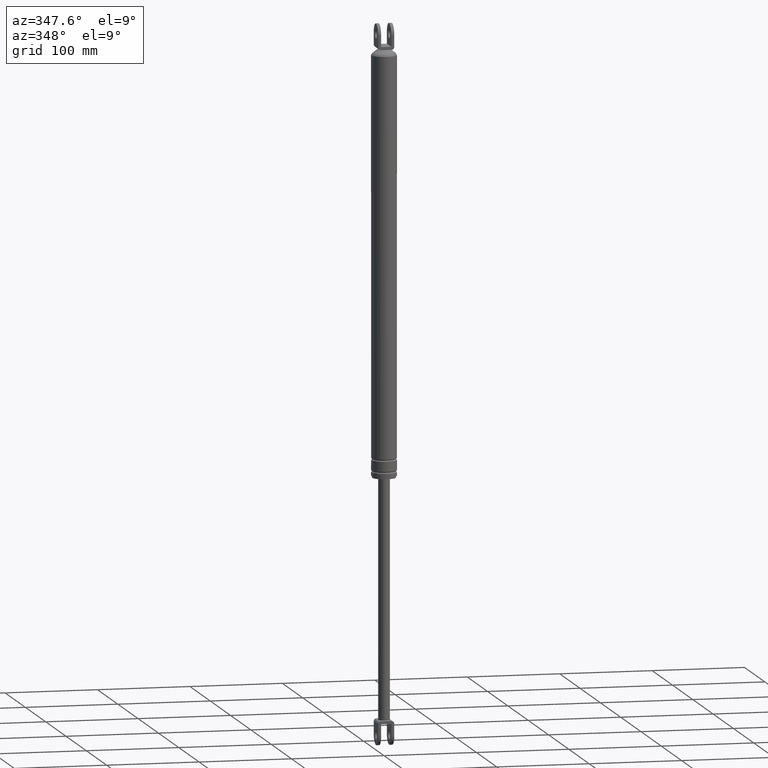
[diagram: clean part render]
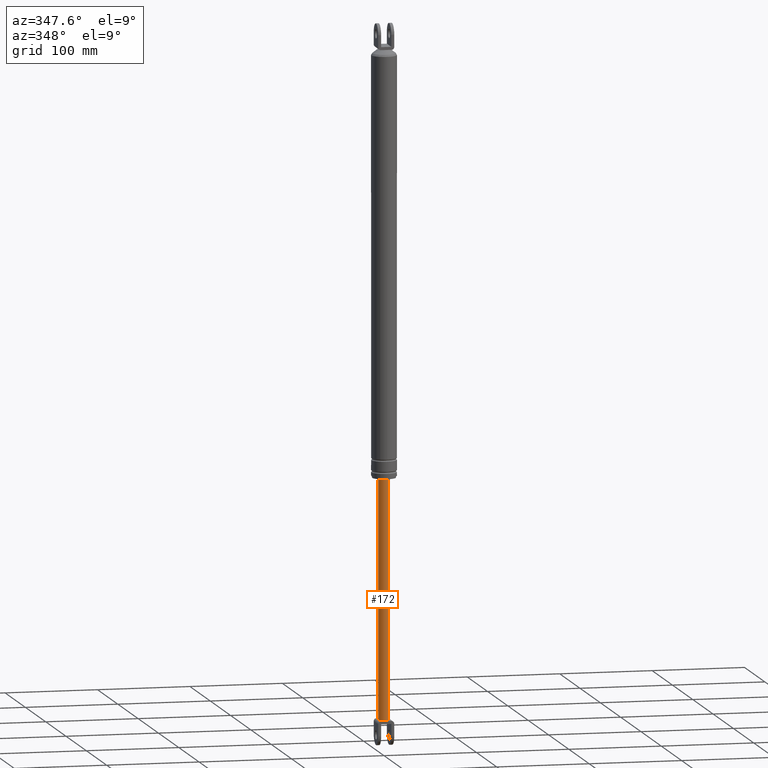
[diagram: same view with one face highlighted and labeled with its STEP entity id]
A machine part, auxiliary view. The second image highlights one B-rep face of the part: STEP entity #172.
In plain terms, the highlighted cylindrical surface (edge-blend (fillet) strip) has radius 6.25 mm, axis along (0, 0, 1).
Its self-contained STEP definition (entity closure, byte-faithful):
#172=ADVANCED_FACE('',(#785),#784,.T.);
#784=CYLINDRICAL_SURFACE('',#2156,6.25000000000E+000);
#785=FACE_OUTER_BOUND('',#2157,.T.);
#2153=CARTESIAN_POINT('',(5.17052520630E-013,7.41881103725E-013,5.64750004000E+001));
#2154=DIRECTION('',(3.80518948291E-015,5.44705299484E-015,1.00000000000E+000));
#2155=DIRECTION('',(5.74319039491E-001,-8.18631566016E-001,2.27373675443E-015));
#2156=AXIS2_PLACEMENT_3D('',#2153,#2154,#2155);
#2157=EDGE_LOOP('',(#2535,#2536,#2537,#2538,#2539,#2540,#2541));
#2535=ORIENTED_EDGE('',*,*,#2720,.F.);
#2536=ORIENTED_EDGE('',*,*,#2737,.F.);
#2537=ORIENTED_EDGE('',*,*,#2723,.F.);
#2538=ORIENTED_EDGE('',*,*,#2740,.T.);
#2539=ORIENTED_EDGE('',*,*,#2717,.F.);
#2540=ORIENTED_EDGE('',*,*,#2719,.F.);
#2541=ORIENTED_EDGE('',*,*,#2741,.F.);
#2717=EDGE_CURVE('',#3851,#3852,#3853,.T.);
#2719=EDGE_CURVE('',#3859,#3851,#3866,.T.);
#2720=EDGE_CURVE('',#3786,#3872,#3873,.T.);
#2723=EDGE_CURVE('',#3885,#3759,#3892,.T.);
#2737=EDGE_CURVE('',#3759,#3786,#3988,.T.);
#2740=EDGE_CURVE('',#3885,#3852,#4006,.T.);
#2741=EDGE_CURVE('',#3872,#3859,#4012,.T.);
#3759=VERTEX_POINT('',#4679);
#3786=VERTEX_POINT('',#4695);
#3851=VERTEX_POINT('',#4758);
#3852=VERTEX_POINT('',#4759);
#3853=CIRCLE('',#4763,6.25000000000E+000);
#3859=VERTEX_POINT('',#4764);
#3866=CIRCLE('',#4772,6.25000000000E+000);
#3872=VERTEX_POINT('',#4773);
#3873=CIRCLE('',#4777,6.25000000000E+000);
#3885=VERTEX_POINT('',#4782);
#3892=CIRCLE('',#4790,6.25000000305E+000);
#3988=(BOUNDED_CURVE() B_SPLINE_CURVE(3,(#4865,#4866,#4867,#4868,#4869,#4870,#4871,#4872,#4873,#4874,#4875,#4876,#4877,#4878,#4879,#4880,#4881),.UNSPECIFIED.,.F.,.F.) B_SPLINE_CURVE_WITH_KNOTS((4,1,1,1,1,1,1,1,1,1,1,1,1,1,4),(0.00000000000E+000,1.01641519416E-001,1.77847726155E-001,2.54044355177E-001,2.92228732341E-001,3.49498611481E-001,4.10848177430E-001,4.92658796549E-001,5.77129441623E-001,6.40474845939E-001,6.99611995185E-001,7.39041351776E-001,8.17313288303E-001,8.95595729765E-001,1.00000000000E+000),.UNSPECIFIED.) CURVE() GEOMETRIC_REPRESENTATION_ITEM() RATIONAL_B_SPLINE_CURVE((1.00000000000E+000,1.00000000000E+000,1.00000000000E+000,1.00000000000E+000,1.00000000000E+000,1.00000000000E+000,1.00000000000E+000,1.00000000000E+000,1.00000000000E+000,1.00000000000E+000,1.00000000000E+000,1.00000000000E+000,1.00000000000E+000,1.00000000000E+000,1.00000000000E+000,1.00000000000E+000,1.00000000000E+000)) REPRESENTATION_ITEM('') );
#4006=(BOUNDED_CURVE() B_SPLINE_CURVE(1,(#4886,#4887),.UNSPECIFIED.,.F.,.F.) B_SPLINE_CURVE_WITH_KNOTS((2,2),(3.58425167392E-002,9.64157716565E-001),.UNSPECIFIED.) CURVE() GEOMETRIC_REPRESENTATION_ITEM() RATIONAL_B_SPLINE_CURVE((1.00000000000E+000,1.00000000000E+000)) REPRESENTATION_ITEM('') );
#4012=(BOUNDED_CURVE() B_SPLINE_CURVE(1,(#4888,#4889),.UNSPECIFIED.,.F.,.F.) B_SPLINE_CURVE_WITH_KNOTS((2,2),(3.58425166952E-002,9.64157716507E-001),.UNSPECIFIED.) CURVE() GEOMETRIC_REPRESENTATION_ITEM() RATIONAL_B_SPLINE_CURVE((7.50000000000E-001,7.50000000000E-001)) REPRESENTATION_ITEM('') );
#4679=CARTESIAN_POINT('',(-5.69999705740E+000,-2.56369541873E+000,-2.09000016000E+002));
#4695=CARTESIAN_POINT('',(-5.69999687926E+000,2.56369568904E+000,-2.09000016000E+002));
#4758=CARTESIAN_POINT('',(-6.25000000000E+000,-1.13360519973E-014,5.00000000000E+001));
#4759=CARTESIAN_POINT('',(3.58949399854E+000,-5.11644728639E+000,5.00000000000E+001));
#4760=CARTESIAN_POINT('',(1.33226762955E-015,8.88178419700E-016,5.00000000000E+001));
#4761=DIRECTION('',(-2.27373675443E-015,4.01943669423E-016,1.00000000000E+000));
#4762=DIRECTION('',(-1.00000000000E+000,-1.63424829225E-015,-2.27373675443E-015));
#4763=AXIS2_PLACEMENT_3D('',#4760,#4761,#4762);
#4764=CARTESIAN_POINT('',(-3.58946074567E+000,5.11647061511E+000,5.00000000000E+001));
#4769=CARTESIAN_POINT('',(1.33226762955E-015,8.88178419700E-016,5.00000000000E+001));
#4770=DIRECTION('',(-2.27373675443E-015,4.01943669423E-016,1.00000000000E+000));
#4771=DIRECTION('',(-1.00000000000E+000,-1.63424829225E-015,-2.27373675443E-015));
#4772=AXIS2_PLACEMENT_3D('',#4769,#4770,#4771);
#4773=CARTESIAN_POINT('',(-3.58942472581E+000,5.11649588466E+000,-2.09000016000E+002));
#4774=CARTESIAN_POINT('',(1.14885878588E-012,1.33359989718E-012,-2.09000016000E+002));
#4775=DIRECTION('',(4.86447595091E-014,1.74623383613E-014,-1.00000000000E+000));
#4776=DIRECTION('',(5.74319538181E-001,-8.18631216155E-001,1.36424205266E-014));
#4777=AXIS2_PLACEMENT_3D('',#4774,#4775,#4776);
#4782=CARTESIAN_POINT('',(3.58949399651E+000,-5.11644728718E+000,-2.09000016000E+002));
#4787=CARTESIAN_POINT('',(-2.01921102061E-009,2.93433277676E-009,-2.09000016000E+002));
#4788=DIRECTION('',(-2.31663044633E-014,1.50105157847E-014,-1.00000000000E+000));
#4789=DIRECTION('',(-9.11999519879E-001,4.10191267266E-001,2.72848410399E-014));
#4790=AXIS2_PLACEMENT_3D('',#4787,#4788,#4789);
#4865=CARTESIAN_POINT('',(-5.69999705740E+000,-2.56369541873E+000,-2.09000016000E+002));
#4866=CARTESIAN_POINT('',(-5.77341445413E+000,-2.40046649805E+000,-2.09000013720E+002));
#4867=CARTESIAN_POINT('',(-5.88960534179E+000,-2.10931025358E+000,-2.09000030250E+002));
#4868=CARTESIAN_POINT('',(-6.02383269203E+000,-1.68226253329E+000,-2.09000030657E+002));
#4869=CARTESIAN_POINT('',(-6.10370320921E+000,-1.35604786135E+000,-2.09000005889E+002));
#4870=CARTESIAN_POINT('',(-6.16132004584E+000,-1.05929751032E+000,-2.09000043077E+002));
#4871=CARTESIAN_POINT('',(-6.20299005658E+000,-7.86232212345E-001,-2.09000079730E+002));
#4872=CARTESIAN_POINT('',(-6.23869610416E+000,-4.34964983356E-001,-2.09000073328E+002));
#4873=CARTESIAN_POINT('',(-6.25505615022E+000,-3.41448677672E-002,-2.08999988265E+002));
#4874=CARTESIAN_POINT('',(-6.24311864507E+000,3.70376878592E-001,-2.09000059591E+002));
#4875=CARTESIAN_POINT('',(-6.20963100253E+000,7.33413294321E-001,-2.09000081063E+002));
#4876=CARTESIAN_POINT('',(-6.16877175902E+000,1.01570467579E+000,-2.09000049264E+002));
#4877=CARTESIAN_POINT('',(-6.11136235329E+000,1.32179798706E+000,-2.09000007357E+002));
#4878=CARTESIAN_POINT('',(-6.03089614009E+000,1.65766770628E+000,-2.09000027842E+002));
#4879=CARTESIAN_POINT('',(-5.89441925349E+000,2.09679556184E+000,-2.09000030510E+002));
#4880=CARTESIAN_POINT('',(-5.77541024819E+000,2.39602991526E+000,-2.09000013667E+002));
#4881=CARTESIAN_POINT('',(-5.69999687926E+000,2.56369568904E+000,-2.09000016000E+002));
#4886=CARTESIAN_POINT('',(3.58949399682E+000,-5.11644728760E+000,-2.09000015988E+002));
#4887=CARTESIAN_POINT('',(3.58949399682E+000,-5.11644728760E+000,5.00000000161E+001));
#4888=CARTESIAN_POINT('',(-3.58949399682E+000,5.11644728760E+000,-2.09000016000E+002));
#4889=CARTESIAN_POINT('',(-3.58949399682E+000,5.11644728760E+000,5.00000000000E+001));